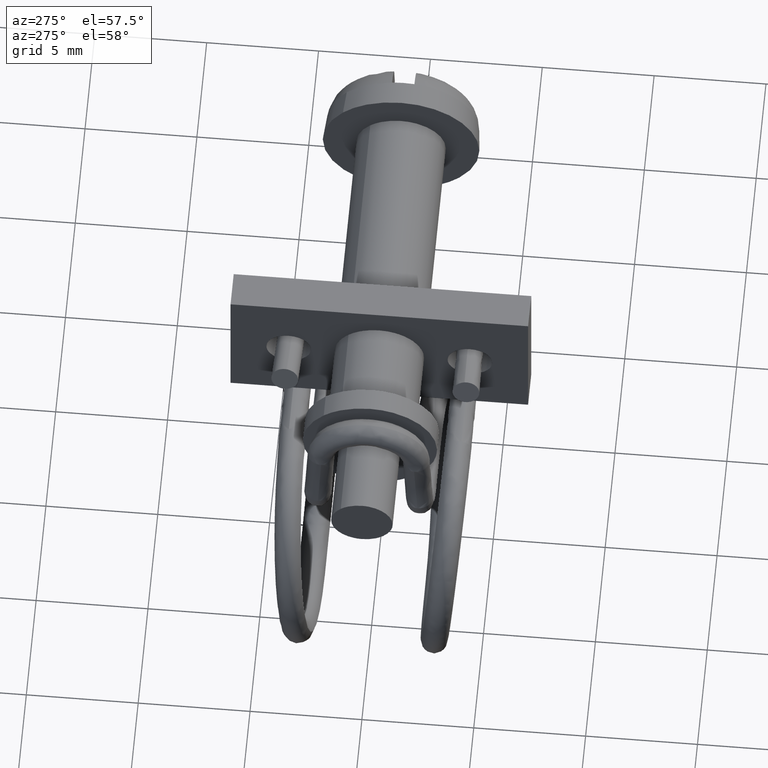
[diagram: clean part render]
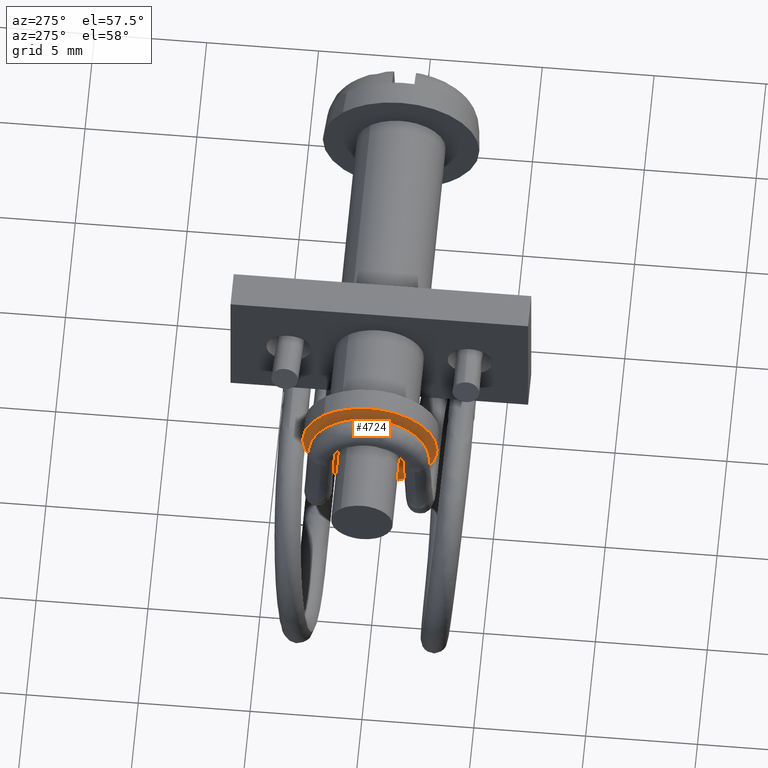
[diagram: same view with one face highlighted and labeled with its STEP entity id]
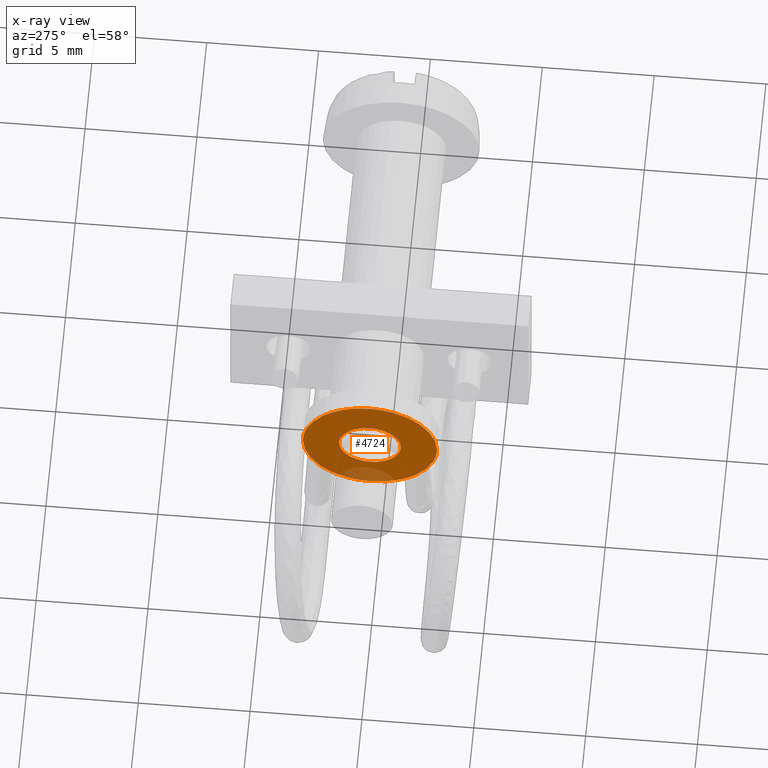
[diagram: x-ray of the same camera — body ghosted, the highlighted face saturated]
A machine part, auxiliary view. The second image highlights one B-rep face of the part: STEP entity #4724.
The next image is the same camera in x-ray: the body ghosted, the highlighted face saturated — about 9% of this face is hidden behind the body in this view.
In plain terms, the highlighted face is a freeform B-spline surface patch.
Its self-contained STEP definition (entity closure, byte-faithful):
#4507=CARTESIAN_POINT('',(-15.900000000000000,0.946487475355505,0.997389690360983));
#4508=VERTEX_POINT('',#4507);
#4514=CARTESIAN_POINT('',(-15.900000000000000,1.375000000000046,-0.000000385338352));
#4515=VERTEX_POINT('',#4514);
#4516=CARTESIAN_POINT('',(-15.900000000000000,0.946487475355505,0.997389690360983));
#4517=CARTESIAN_POINT('',(-15.900000000000009,1.026608260990036,0.921390066585033));
#4518=CARTESIAN_POINT('',(-15.900000000000009,1.142255501476577,0.781525750822119));
#4519=CARTESIAN_POINT('',(-15.900000000000020,1.269514635759947,0.545516052747579));
#4520=CARTESIAN_POINT('',(-15.899999999999940,1.353004745800621,0.296407009959294));
#4521=CARTESIAN_POINT('',(-15.900000000000031,1.375020764417199,0.104619139641613));
#4522=CARTESIAN_POINT('',(-15.900000000000000,1.375000000000046,-0.000000385338352));
#4523=B_SPLINE_CURVE_WITH_KNOTS('',3,(#4516,#4517,#4518,#4519,#4520,#4521,#4522),.UNSPECIFIED.,.F.,.U.,(4,1,1,1,4),(0.000000010003054,0.331292289298782,0.540532983804655,0.802072614631821,1.115927713265864),.UNSPECIFIED.);
#4524=EDGE_CURVE('',#4508,#4515,#4523,.T.);
#4526=CARTESIAN_POINT('',(-15.900000000000000,0.0,-1.375000000000100));
#4527=VERTEX_POINT('',#4526);
#4528=CARTESIAN_POINT('',(-15.900000000000000,1.375000000000046,-0.000000385338352));
#4529=CARTESIAN_POINT('',(-15.900000000000050,1.375020245132378,-0.101243672365254));
#4530=CARTESIAN_POINT('',(-15.899999999999951,1.355648901840442,-0.275596733828779));
#4531=CARTESIAN_POINT('',(-15.900000000000061,1.275446938833747,-0.534293594986922));
#4532=CARTESIAN_POINT('',(-15.900000000000020,1.167402161479288,-0.739447902287626));
#4533=CARTESIAN_POINT('',(-15.899999999999849,1.009114411085572,-0.944860980386281));
#4534=CARTESIAN_POINT('',(-15.900000000000389,0.828821714308583,-1.108274165755062));
#4535=CARTESIAN_POINT('',(-15.899999999999510,0.610913801338046,-1.238863620509333));
#4536=CARTESIAN_POINT('',(-15.900000000000420,0.343071018448601,-1.344099929876067));
#4537=CARTESIAN_POINT('',(-15.899999999999951,0.134997695968046,-1.375056823787563));
#4538=CARTESIAN_POINT('',(-15.900000000000000,0.0,-1.375000000000100));
#4539=B_SPLINE_CURVE_WITH_KNOTS('',3,(#4528,#4529,#4530,#4531,#4532,#4533,#4534,#4535,#4536,#4537,#4538),.UNSPECIFIED.,.F.,.U.,(4,1,1,1,1,1,1,1,4),(0.000000037289970,0.303726804356962,0.523090550950207,0.809950286293237,0.995566644350735,1.299284362284486,1.535523514150515,1.754885625899728,2.159858284271457),.UNSPECIFIED.);
#4540=EDGE_CURVE('',#4515,#4527,#4539,.T.);
#4542=CARTESIAN_POINT('',(-15.900000000000000,-0.946487475355501,-0.997389690360979));
#4543=VERTEX_POINT('',#4542);
#4544=CARTESIAN_POINT('',(-15.900000000000000,0.0,-1.375000000000100));
#4545=CARTESIAN_POINT('',(-15.899999999999970,-0.119622399888204,-1.375042958436564));
#4546=CARTESIAN_POINT('',(-15.900000000000070,-0.299020504572204,-1.351425577631498));
#4547=CARTESIAN_POINT('',(-15.899999999999920,-0.557092590405550,-1.264123144648668));
#4548=CARTESIAN_POINT('',(-15.900000000000150,-0.759355638250041,-1.155639993343576));
#4549=CARTESIAN_POINT('',(-15.899999999999849,-0.891274737157858,-1.049788564654949));
#4550=CARTESIAN_POINT('',(-15.900000000000000,-0.946487475355501,-0.997389690360979));
#4551=B_SPLINE_CURVE_WITH_KNOTS('',3,(#4544,#4545,#4546,#4547,#4548,#4549,#4550),.UNSPECIFIED.,.F.,.U.,(4,1,1,1,4),(9.236255E-009,0.358851881029303,0.538271123165182,0.815571845219615,1.043931143128408),.UNSPECIFIED.);
#4552=EDGE_CURVE('',#4527,#4543,#4551,.T.);
#4586=CARTESIAN_POINT('',(-15.900000000000000,-1.375000000000046,0.000000385338376));
#4587=VERTEX_POINT('',#4586);
#4588=CARTESIAN_POINT('',(-15.900000000000000,-0.946487475355501,-0.997389690360979));
#4589=CARTESIAN_POINT('',(-15.900000000000020,-1.047726405453805,-0.901415231846697));
#4590=CARTESIAN_POINT('',(-15.899999999999981,-1.191704568280202,-0.715470315811198));
#4591=CARTESIAN_POINT('',(-15.900000000000000,-1.339299763255174,-0.371935637404036));
#4592=CARTESIAN_POINT('',(-15.900000000000039,-1.375073290104942,-0.139499915657557));
#4593=CARTESIAN_POINT('',(-15.900000000000000,-1.375000000000046,0.000000385338376));
#4594=B_SPLINE_CURVE_WITH_KNOTS('',3,(#4588,#4589,#4590,#4591,#4592,#4593),.UNSPECIFIED.,.F.,.U.,(4,1,1,4),(0.000000010003151,0.418475367372012,0.697452355888475,1.115927713265884),.UNSPECIFIED.);
#4595=EDGE_CURVE('',#4543,#4587,#4594,.T.);
#4597=CARTESIAN_POINT('',(-15.900000000000000,0.0,1.375000000000100));
#4598=VERTEX_POINT('',#4597);
#4599=CARTESIAN_POINT('',(-15.900000000000000,-1.375000000000046,0.000000385338376));
#4600=CARTESIAN_POINT('',(-15.899999999999981,-1.375076271387182,0.146249460176654));
#4601=CARTESIAN_POINT('',(-15.900000000000020,-1.331518976435881,0.416178905215348));
#4602=CARTESIAN_POINT('',(-15.900000000000000,-1.174662786666182,0.737536766066274));
#4603=CARTESIAN_POINT('',(-15.900000000000050,-0.975481794687307,0.983268936063451));
#4604=CARTESIAN_POINT('',(-15.899999999999920,-0.751115010047387,1.165119671711087));
#4605=CARTESIAN_POINT('',(-15.900000000000210,-0.518032270177737,1.280635950592973));
#4606=CARTESIAN_POINT('',(-15.899999999999840,-0.269970363359219,1.355883296232612));
#4607=CARTESIAN_POINT('',(-15.900000000000301,-0.106869485964125,1.375023392347300));
#4608=CARTESIAN_POINT('',(-15.900000000000000,0.0,1.375000000000100));
#4609=B_SPLINE_CURVE_WITH_KNOTS('',3,(#4599,#4600,#4601,#4602,#4603,#4604,#4605,#4606,#4607,#4608),.UNSPECIFIED.,.F.,.U.,(4,1,1,1,1,1,1,4),(0.000000037290639,0.438720021790470,0.809950286293641,1.063066378079725,1.383654020603644,1.670515975004352,1.839255203393997,2.159858284271440),.UNSPECIFIED.);
#4610=EDGE_CURVE('',#4587,#4598,#4609,.T.);
#4612=CARTESIAN_POINT('',(-15.900000000000000,0.0,1.375000000000100));
#4613=CARTESIAN_POINT('',(-15.899999999999920,0.146814089330478,1.375079996658017));
#4614=CARTESIAN_POINT('',(-15.900000000000130,0.375114291430844,1.338068141370630));
#4615=CARTESIAN_POINT('',(-15.899999999999860,0.695614853178073,1.199020839370568));
#4616=CARTESIAN_POINT('',(-15.900000000000080,0.859745025749293,1.079759998740330));
#4617=CARTESIAN_POINT('',(-15.900000000000000,0.946487475355505,0.997389690360983));
#4618=B_SPLINE_CURVE_WITH_KNOTS('',3,(#4612,#4613,#4614,#4615,#4616,#4617),.UNSPECIFIED.,.F.,.U.,(4,1,1,4),(9.236239E-009,0.440408849376969,0.685079271333301,1.043931143128410),.UNSPECIFIED.);
#4619=EDGE_CURVE('',#4598,#4508,#4618,.T.);
#4625=CARTESIAN_POINT('',(-15.900000000000000,-3.299699988370934,-3.299699988370946));
#4626=CARTESIAN_POINT('',(-15.900000000000000,-3.299699988370934,3.299700149303487));
#4627=CARTESIAN_POINT('',(-15.900000000000000,3.299700149303475,-3.299699988370946));
#4628=CARTESIAN_POINT('',(-15.900000000000000,3.299700149303475,3.299700149303487));
#4629=B_SPLINE_SURFACE_WITH_KNOTS('',1,1,((#4625,#4627),(#4626,#4628)),.UNSPECIFIED.,.F.,.F.,.U.,(2,2),(2,2),(0.0,6.599400137674433),(0.0,6.599400137674409),.UNSPECIFIED.);
#4630=CARTESIAN_POINT('',(-15.900000000000000,0.0,3.000000000000100));
#4631=VERTEX_POINT('',#4630);
#4632=CARTESIAN_POINT('',(-15.899999999998681,2.065063669839561,2.176123079606109));
#4633=VERTEX_POINT('',#4632);
#4634=CARTESIAN_POINT('',(-15.900000000000000,0.0,3.000000000000100));
#4635=CARTESIAN_POINT('',(-15.899999999999840,0.201670211328844,3.000030725017516));
#4636=CARTESIAN_POINT('',(-15.899999999999700,0.521952044294577,2.967569134115286));
#4637=CARTESIAN_POINT('',(-15.899999999999400,1.038620867759571,2.829611683197705));
#4638=CARTESIAN_POINT('',(-15.899999999998810,1.548990505930474,2.597352240383587));
#4639=CARTESIAN_POINT('',(-15.899999999998910,1.901593050633519,2.331302941907901));
#4640=CARTESIAN_POINT('',(-15.899999999998681,2.065063669839561,2.176123079606109));
#4641=B_SPLINE_CURVE_WITH_KNOTS('',3,(#4634,#4635,#4636,#4637,#4638,#4639,#4640),.UNSPECIFIED.,.F.,.U.,(4,1,1,1,4),(4.853909E-009,0.605005694917258,0.960895437147469,1.601484168708677,2.277667985655024),.UNSPECIFIED.);
#4642=EDGE_CURVE('',#4631,#4633,#4641,.T.);
#4643=ORIENTED_EDGE('',*,*,#4642,.T.);
#4644=CARTESIAN_POINT('',(-15.900000000000000,3.000000000000089,-0.000000254959403));
#4645=VERTEX_POINT('',#4644);
#4646=CARTESIAN_POINT('',(-15.899999999998681,2.065063669839561,2.176123079606109));
#4647=CARTESIAN_POINT('',(-15.899999999998750,2.258297613324138,1.992869222791124));
#4648=CARTESIAN_POINT('',(-15.899999999999061,2.523127474930446,1.664090974076345));
#4649=CARTESIAN_POINT('',(-15.899999999999279,2.793392051652147,1.130941985892942));
#4650=CARTESIAN_POINT('',(-15.899999999999601,2.957439685953276,0.608670717467872));
#4651=CARTESIAN_POINT('',(-15.899999999999910,3.000036852947952,0.215578140101920));
#4652=CARTESIAN_POINT('',(-15.900000000000000,3.000000000000089,-0.000000254959403));
#4653=B_SPLINE_CURVE_WITH_KNOTS('',3,(#4646,#4647,#4648,#4649,#4650,#4651,#4652),.UNSPECIFIED.,.F.,.U.,(4,1,1,1,4),(3.698809E-009,0.798904516793689,1.255417001869828,1.788020092328971,2.434750866455056),.UNSPECIFIED.);
#4654=EDGE_CURVE('',#4633,#4645,#4653,.T.);
#4655=ORIENTED_EDGE('',*,*,#4654,.T.);
#4656=CARTESIAN_POINT('',(-15.900000000000000,0.0,-3.000000000000100));
#4657=VERTEX_POINT('',#4656);
#4658=CARTESIAN_POINT('',(-15.900000000000000,3.000000000000089,-0.000000254959403));
#4659=CARTESIAN_POINT('',(-15.900000000000000,3.000006062664262,-0.147261970599604));
#4660=CARTESIAN_POINT('',(-15.900000000000050,2.977367710157630,-0.454056212789630));
#4661=CARTESIAN_POINT('',(-15.899999999999940,2.861013297256169,-0.957857246760665));
#4662=CARTESIAN_POINT('',(-15.900000000000080,2.629269279613054,-1.489467200198160));
#4663=CARTESIAN_POINT('',(-15.899999999999970,2.285270624099551,-1.971584420392989));
#4664=CARTESIAN_POINT('',(-15.900000000000020,1.937342792716714,-2.302793236378656));
#4665=CARTESIAN_POINT('',(-15.899999999999990,1.578867558497034,-2.561909572807432));
#4666=CARTESIAN_POINT('',(-15.899999999999959,1.166084694558060,-2.782563866041364));
#4667=CARTESIAN_POINT('',(-15.900000000000230,0.613581773127388,-2.957591898845584));
#4668=CARTESIAN_POINT('',(-15.899999999999620,0.208622598592205,-3.000030963150916));
#4669=CARTESIAN_POINT('',(-15.900000000000000,0.0,-3.000000000000100));
#4670=B_SPLINE_CURVE_WITH_KNOTS('',3,(#4658,#4659,#4660,#4661,#4662,#4663,#4664,#4665,#4666,#4667,#4668,#4669),.UNSPECIFIED.,.F.,.U.,(4,1,1,1,1,1,1,1,1,4),(0.000000010533798,0.441788391613014,0.920392746120556,1.546266517930087,2.172138656100433,2.687541942318203,2.982073348503011,3.497497599282064,4.086554264732342,4.712418404925385),.UNSPECIFIED.);
#4671=EDGE_CURVE('',#4645,#4657,#4670,.T.);
#4672=ORIENTED_EDGE('',*,*,#4671,.T.);
#4673=CARTESIAN_POINT('',(-15.899999999998681,-2.065063669839563,-2.176123079606110));
#4674=VERTEX_POINT('',#4673);
#4675=CARTESIAN_POINT('',(-15.900000000000000,0.0,-3.000000000000100));
#4676=CARTESIAN_POINT('',(-15.899999999999940,-0.142352908495332,-3.000005071159720));
#4677=CARTESIAN_POINT('',(-15.899999999999700,-0.438922661275432,-2.978856042101841));
#4678=CARTESIAN_POINT('',(-15.899999999999419,-0.822140316010332,-2.893378914028648));
#4679=CARTESIAN_POINT('',(-15.899999999999270,-1.213452087584066,-2.753184877665774));
#4680=CARTESIAN_POINT('',(-15.899999999998929,-1.626409126826168,-2.541075800101929));
#4681=CARTESIAN_POINT('',(-15.899999999998739,-1.918797137356513,-2.314963816547526));
#4682=CARTESIAN_POINT('',(-15.899999999998681,-2.065063669839563,-2.176123079606110));
#4683=B_SPLINE_CURVE_WITH_KNOTS('',3,(#4675,#4676,#4677,#4678,#4679,#4680,#4681,#4682),.UNSPECIFIED.,.F.,.U.,(4,1,1,1,1,4),(4.853692E-009,0.427061099049688,0.889715802518888,1.174419929567496,1.672662295592985,2.277667985655025),.UNSPECIFIED.);
#4684=EDGE_CURVE('',#4657,#4674,#4683,.T.);
#4685=ORIENTED_EDGE('',*,*,#4684,.T.);
#4686=CARTESIAN_POINT('',(-15.900000000000000,-3.000000000000089,0.000000254959396));
#4687=VERTEX_POINT('',#4686);
#4688=CARTESIAN_POINT('',(-15.899999999998681,-2.065063669839563,-2.176123079606110));
#4689=CARTESIAN_POINT('',(-15.899999999998730,-2.203057421601192,-2.045204602545607));
#4690=CARTESIAN_POINT('',(-15.899999999998970,-2.412167163650499,-1.805020524468488));
#4691=CARTESIAN_POINT('',(-15.899999999999080,-2.647625332024831,-1.427741781190339));
#4692=CARTESIAN_POINT('',(-15.899999999999411,-2.817557540453453,-1.058348826117160));
#4693=CARTESIAN_POINT('',(-15.899999999999631,-2.960181019650308,-0.583308684503090));
#4694=CARTESIAN_POINT('',(-15.899999999999860,-3.000039301375917,-0.215578966482174));
#4695=CARTESIAN_POINT('',(-15.900000000000000,-3.000000000000089,0.000000254959396));
#4696=B_SPLINE_CURVE_WITH_KNOTS('',3,(#4688,#4689,#4690,#4691,#4692,#4693,#4694,#4695),.UNSPECIFIED.,.F.,.U.,(4,1,1,1,1,4),(3.698936E-009,0.570644660950934,0.951078410944643,1.331501090166715,1.788020092328978,2.434750866455049),.UNSPECIFIED.);
#4697=EDGE_CURVE('',#4674,#4687,#4696,.T.);
#4698=ORIENTED_EDGE('',*,*,#4697,.T.);
#4699=CARTESIAN_POINT('',(-15.900000000000000,-3.000000000000089,0.000000254959396));
#4700=CARTESIAN_POINT('',(-15.900000000000031,-3.000079368614502,0.257718939352502));
#4701=CARTESIAN_POINT('',(-15.899999999999970,-2.950661820860846,0.638099837489180));
#4702=CARTESIAN_POINT('',(-15.900000000000020,-2.773244791466790,1.175129291783483));
#4703=CARTESIAN_POINT('',(-15.900000000000009,-2.560128972652335,1.592136566180725));
#4704=CARTESIAN_POINT('',(-15.899999999999901,-2.234786910148154,2.025234109476403));
#4705=CARTESIAN_POINT('',(-15.900000000000279,-1.864382440433758,2.369329811713321));
#4706=CARTESIAN_POINT('',(-15.899999999999590,-1.472417851259372,2.624299689104400));
#4707=CARTESIAN_POINT('',(-15.900000000000180,-1.072295163822718,2.813554074494271));
#4708=CARTESIAN_POINT('',(-15.900000000000119,-0.589038621445793,2.960157892222604));
#4709=CARTESIAN_POINT('',(-15.899999999999650,-0.208621648032987,3.000030575916085));
#4710=CARTESIAN_POINT('',(-15.900000000000000,0.0,3.000000000000100));
#4711=B_SPLINE_CURVE_WITH_KNOTS('',3,(#4699,#4700,#4701,#4702,#4703,#4704,#4705,#4706,#4707,#4708,#4709,#4710),.UNSPECIFIED.,.F.,.U.,(4,1,1,1,1,1,1,1,1,4),(0.000000010533904,0.773128922152953,1.141288644326829,1.693528282364955,2.172138656100449,2.761175686075597,3.202968723350426,3.571130013842192,4.086554264732343,4.712418404925388),.UNSPECIFIED.);
#4712=EDGE_CURVE('',#4687,#4631,#4711,.T.);
#4713=ORIENTED_EDGE('',*,*,#4712,.T.);
#4714=EDGE_LOOP('',(#4643,#4655,#4672,#4685,#4698,#4713));
#4715=FACE_OUTER_BOUND('',#4714,.T.);
#4716=ORIENTED_EDGE('',*,*,#4540,.F.);
#4717=ORIENTED_EDGE('',*,*,#4524,.F.);
#4718=ORIENTED_EDGE('',*,*,#4619,.F.);
#4719=ORIENTED_EDGE('',*,*,#4610,.F.);
#4720=ORIENTED_EDGE('',*,*,#4595,.F.);
#4721=ORIENTED_EDGE('',*,*,#4552,.F.);
#4722=EDGE_LOOP('',(#4716,#4717,#4718,#4719,#4720,#4721));
#4723=FACE_BOUND('',#4722,.T.);
#4724=ADVANCED_FACE('',(#4715,#4723),#4629,.T.);